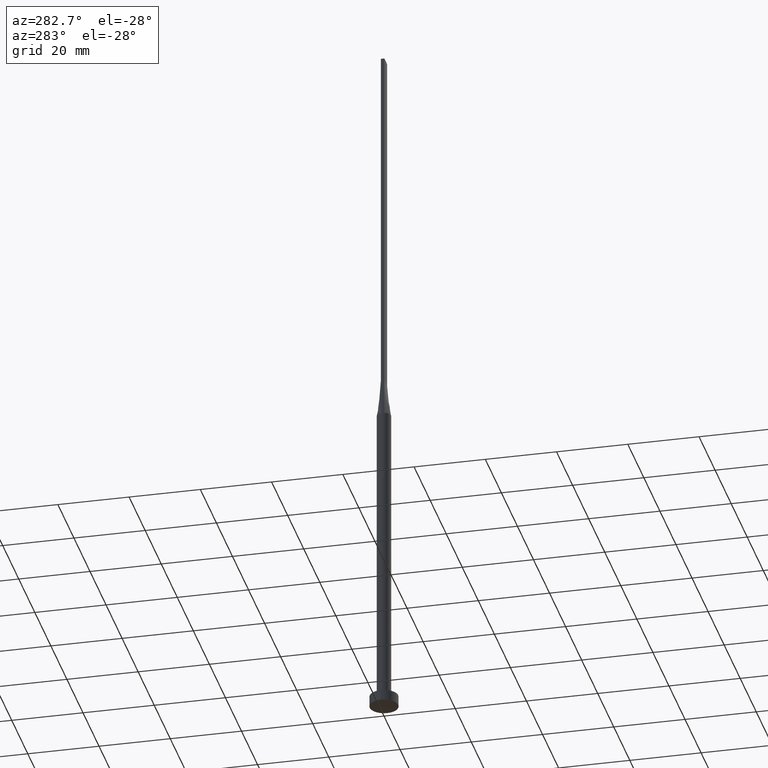
[diagram: clean part render]
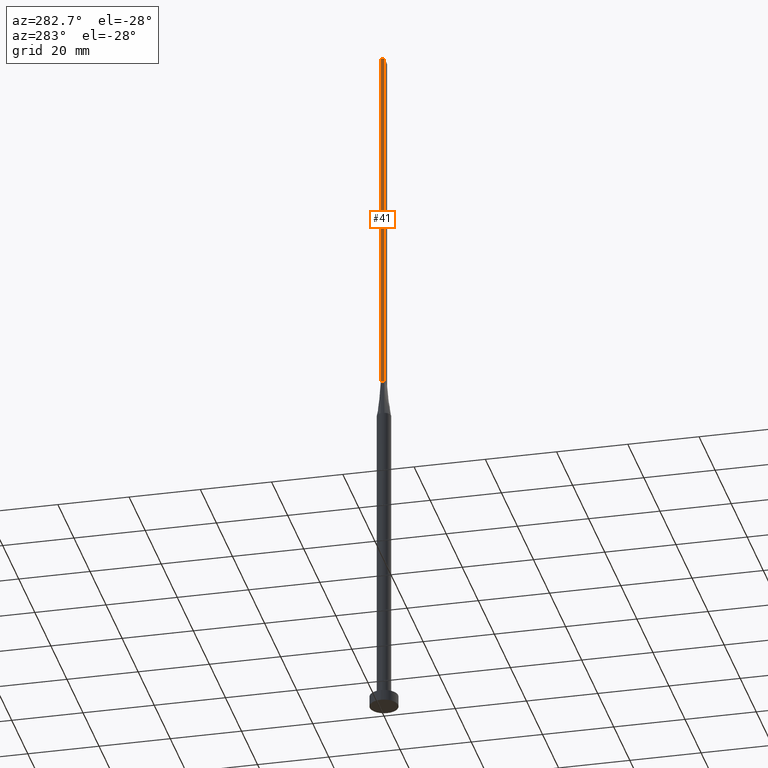
[diagram: same view with one face highlighted and labeled with its STEP entity id]
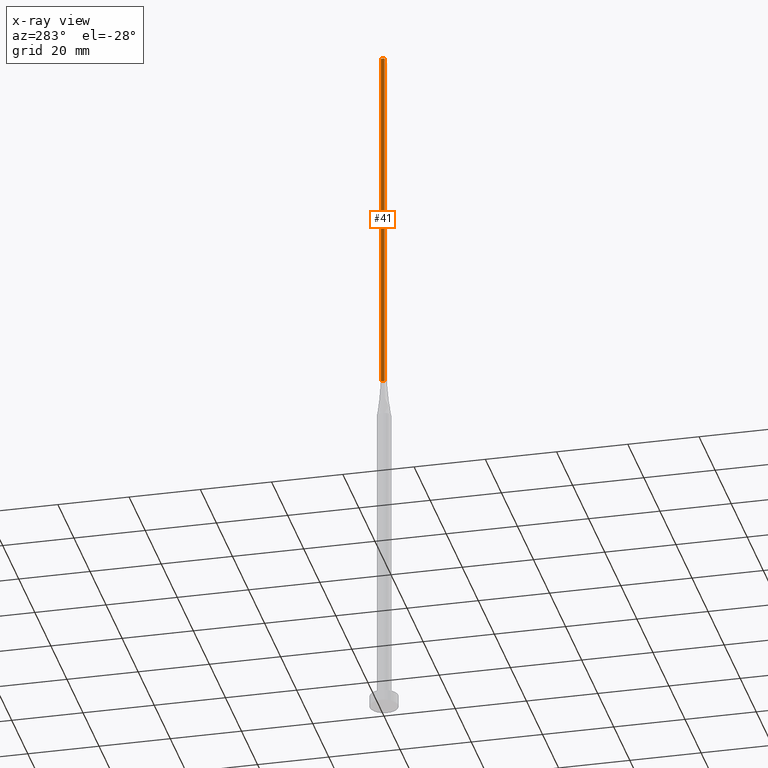
[diagram: x-ray of the same camera — body ghosted, the highlighted face saturated]
A machine part, auxiliary view. The second image highlights one B-rep face of the part: STEP entity #41.
The next image is the same camera in x-ray: the body ghosted, the highlighted face saturated — about 0% of this face is hidden behind the body in this view.
In plain terms, the highlighted planar face has unit normal (1, -0, 0).
Its self-contained STEP definition (entity closure, byte-faithful):
#32 = DIRECTION ( 'NONE',  ( -0.000000000000000000, -0.000000000000000000, -1.000000000000000000 ) ) ;
#41 = ADVANCED_FACE ( 'NONE', ( #389 ), #85, .F. ) ;
#53 = VECTOR ( 'NONE', #156, 1000.000000000000000 ) ;
#54 = LINE ( 'NONE', #368, #397 ) ;
#63 = ORIENTED_EDGE ( 'NONE', *, *, #546, .T. ) ;
#84 = LINE ( 'NONE', #344, #139 ) ;
#85 = PLANE ( 'NONE',  #248 ) ;
#89 = EDGE_LOOP ( 'NONE', ( #178, #425, #343, #63 ) ) ;
#133 = DIRECTION ( 'NONE',  ( 1.000000000000000000, -2.168404344971009361E-16, 0.000000000000000000 ) ) ;
#139 = VECTOR ( 'NONE', #32, 1000.000000000000000 ) ;
#147 = EDGE_CURVE ( 'NONE', #266, #235, #384, .T. ) ;
#148 = DIRECTION ( 'NONE',  ( -2.168404344971009361E-16, -1.000000000000000000, 0.000000000000000000 ) ) ;
#151 = EDGE_CURVE ( 'NONE', #195, #266, #340, .T. ) ;
#156 = DIRECTION ( 'NONE',  ( -2.168404344971009361E-16, -1.000000000000000000, 0.000000000000000000 ) ) ;
#178 = ORIENTED_EDGE ( 'NONE', *, *, #320, .T. ) ;
#195 = VERTEX_POINT ( 'NONE', #353 ) ;
#235 = VERTEX_POINT ( 'NONE', #398 ) ;
#247 = CARTESIAN_POINT ( 'NONE',  ( -1.749999999999999778, 0.5000000000000002220, 99.99999999999998579 ) ) ;
#248 = AXIS2_PLACEMENT_3D ( 'NONE', #393, #133, #347 ) ;
#266 = VERTEX_POINT ( 'NONE', #311 ) ;
#293 = CARTESIAN_POINT ( 'NONE',  ( -1.749999999999999778, 0.5000000000000002220, 200.0000000000000000 ) ) ;
#311 = CARTESIAN_POINT ( 'NONE',  ( -1.750000000000000000, -0.4999999999999995559, 200.0000000000000000 ) ) ;
#312 = VECTOR ( 'NONE', #484, 1000.000000000000000 ) ;
#320 = EDGE_CURVE ( 'NONE', #565, #235, #54, .T. ) ;
#340 = LINE ( 'NONE', #293, #53 ) ;
#343 = ORIENTED_EDGE ( 'NONE', *, *, #151, .F. ) ;
#344 = CARTESIAN_POINT ( 'NONE',  ( -1.749999999999999778, 0.5000000000000002220, 200.0000000000000000 ) ) ;
#347 = DIRECTION ( 'NONE',  ( 2.168404344971009361E-16, 1.000000000000000000, 0.000000000000000000 ) ) ;
#353 = CARTESIAN_POINT ( 'NONE',  ( -1.749999999999999778, 0.5000000000000002220, 200.0000000000000000 ) ) ;
#368 = CARTESIAN_POINT ( 'NONE',  ( -1.749999999999999778, 0.5000000000000002220, 99.99999999999998579 ) ) ;
#384 = LINE ( 'NONE', #480, #312 ) ;
#389 = FACE_OUTER_BOUND ( 'NONE', #89, .T. ) ;
#393 = CARTESIAN_POINT ( 'NONE',  ( -1.749999999999999778, 0.5000000000000002220, 200.0000000000000000 ) ) ;
#397 = VECTOR ( 'NONE', #148, 1000.000000000000000 ) ;
#398 = CARTESIAN_POINT ( 'NONE',  ( -1.750000000000000000, -0.4999999999999995559, 99.99999999999998579 ) ) ;
#425 = ORIENTED_EDGE ( 'NONE', *, *, #147, .F. ) ;
#480 = CARTESIAN_POINT ( 'NONE',  ( -1.750000000000000000, -0.4999999999999995559, 200.0000000000000000 ) ) ;
#484 = DIRECTION ( 'NONE',  ( -0.000000000000000000, -0.000000000000000000, -1.000000000000000000 ) ) ;
#546 = EDGE_CURVE ( 'NONE', #195, #565, #84, .T. ) ;
#565 = VERTEX_POINT ( 'NONE', #247 ) ;